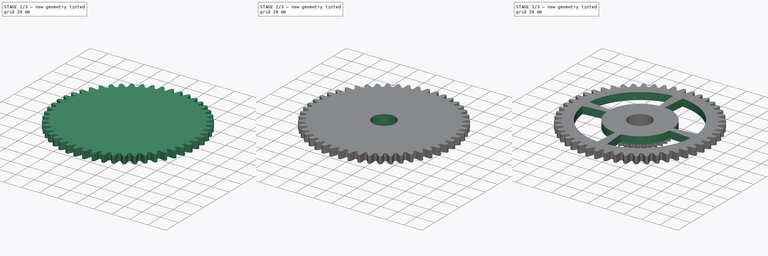
[diagram: build sequence overview — one tinted view per stage of 3, left to right]
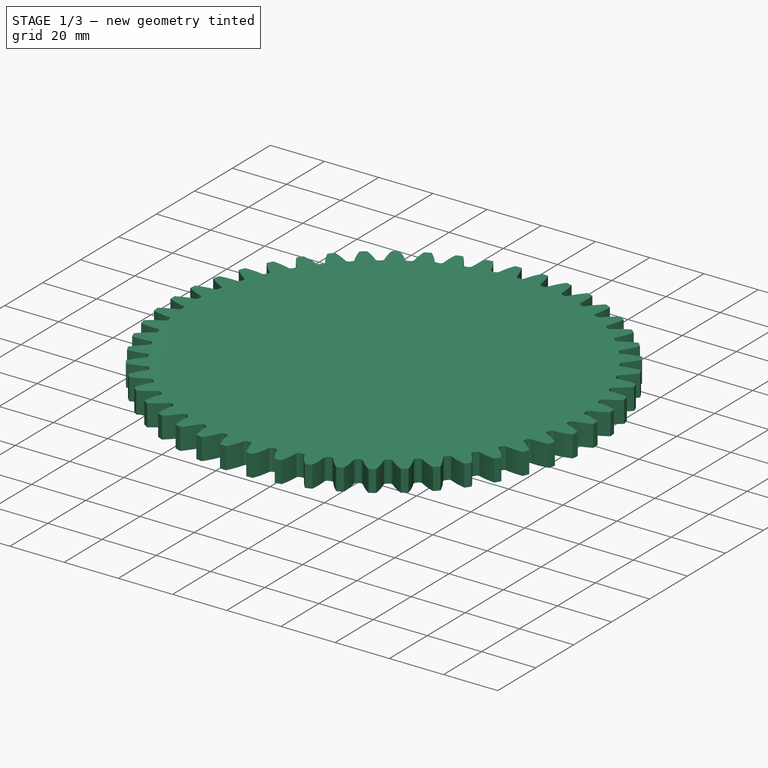
[diagram: stage 1 of 3 — iso view after this stage's code; geometry added in this stage tinted green]
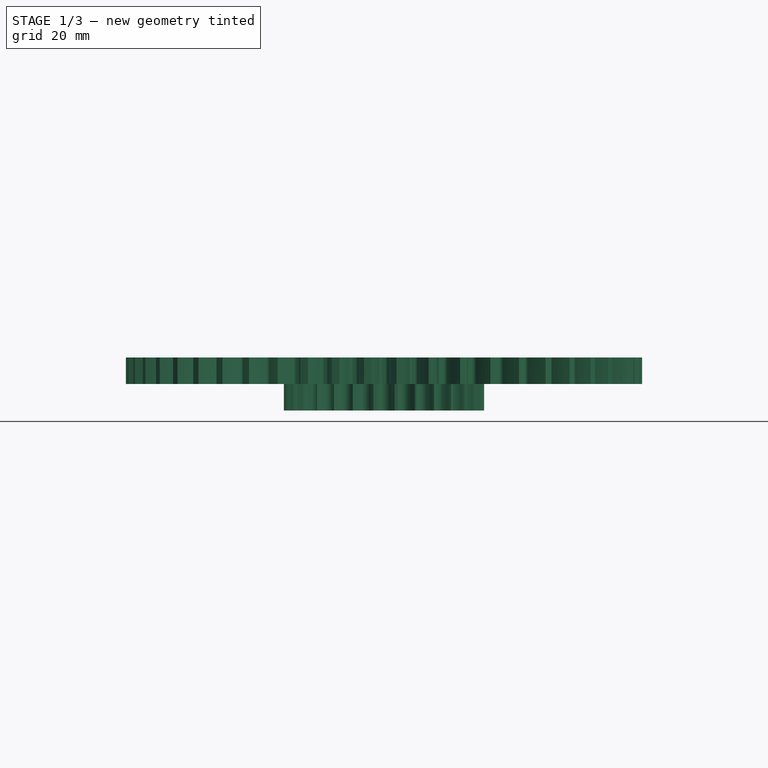
[diagram: stage 1 of 3 — front view after this stage's code; geometry added in this stage tinted green]
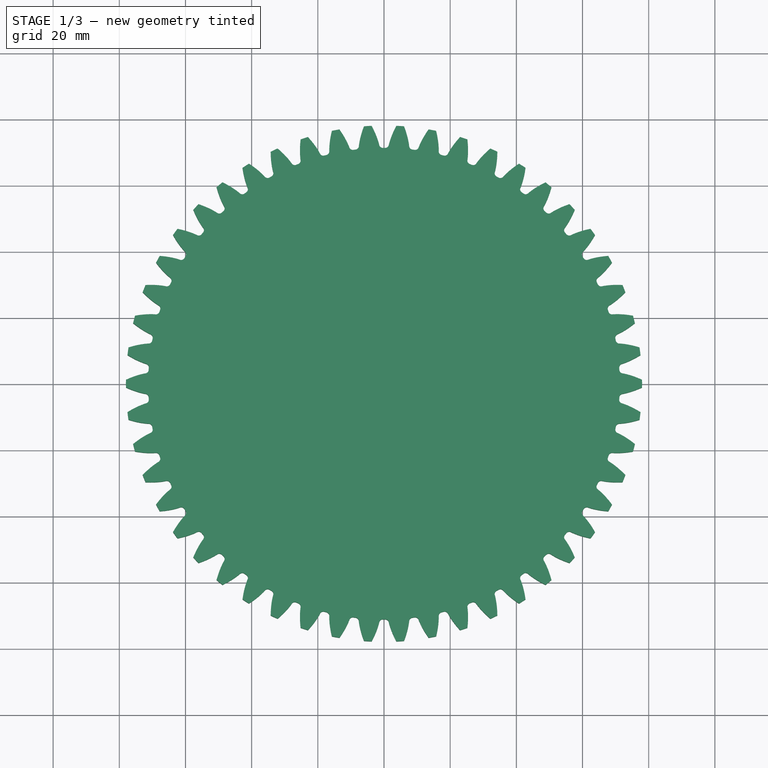
[diagram: stage 1 of 3 — top view after this stage's code; geometry added in this stage tinted green]
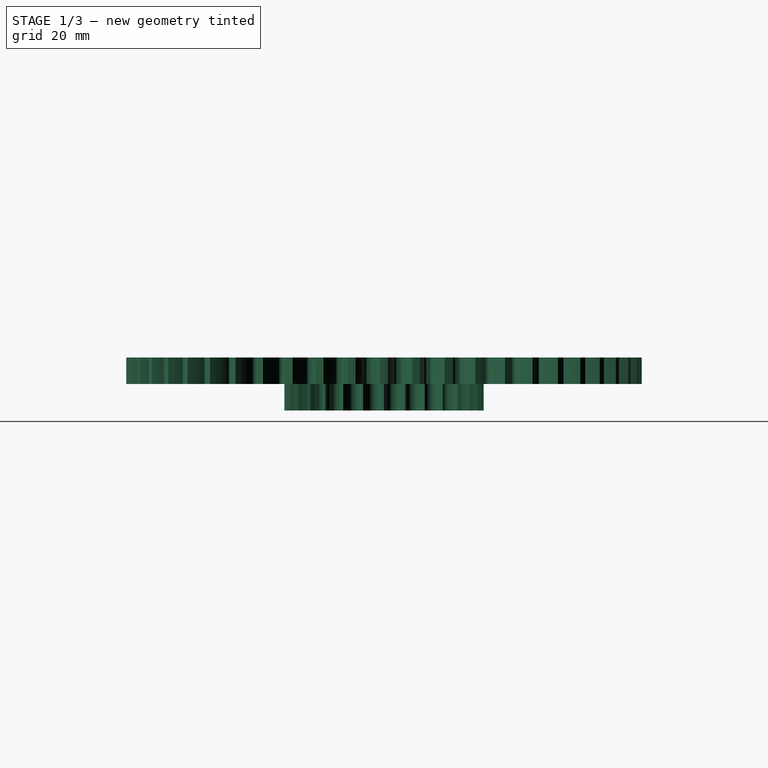
[diagram: stage 1 of 3 — right view after this stage's code; geometry added in this stage tinted green]
FCSTD DOCUMENT  (FreeCAD 0.19R24291 (Git))
Label: blindGear2
License: All rights reserved
LicenseURL: http://en.wikipedia.org/wiki/All_rights_reserved
objects: Sketcher::SketchObject×3, PartDesign::Pocket×3, Part::Part2DObjectPython×2, PartDesign::Pad×2, PartDesign::PolarPattern×1, PartDesign::Body×1
note: 17 computed .brp shape members not serialized (recipe doc carries the construction recipe); baked Part::Feature solids carry a one-line shape summary decoded from their .brp

FEATURE [Part::Part2DObjectPython] InvoluteGear  # Draft 2D object (typed FeaturePython)
  ExternalGear = true
  HighPrecision = false
  MapMode = 3
  Modules = 3
  NumberOfTeeth = 50
  PressureAngle = 20
FEATURE [PartDesign::Pad] Pad  label="Large gear"
  Direction = (1,1,1)
  Length = 8
  Length2 = 100
  Profile = -> InvoluteGear
  Type = 0
FEATURE [Part::Part2DObjectPython] Sprocket  # Draft 2D object (typed FeaturePython)
  ANSISize = 35
  NumberOfTeeth = 30
  Pitch = 6
  RollerDiameter = 4.3
FEATURE [PartDesign::Pad] Pad001  label="small gear"
  BaseFeature = -> Pad
  Direction = (1,1,1)
  Length = 8
  Length2 = 100
  Profile = -> Sprocket
  Reversed = true
  Type = 0
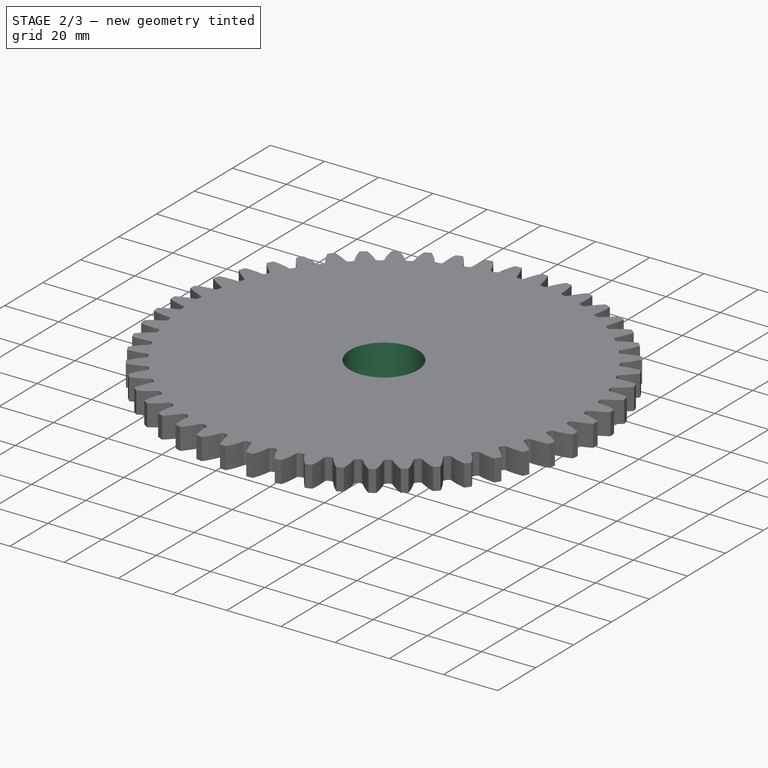
[diagram: stage 2 of 3 — iso view after this stage's code; geometry added in this stage tinted green]
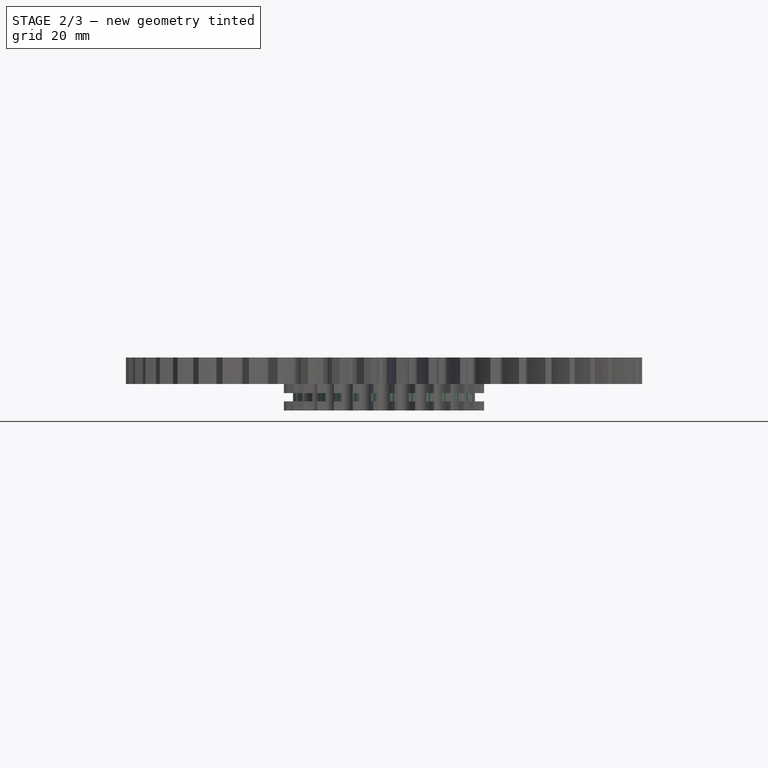
[diagram: stage 2 of 3 — front view after this stage's code; geometry added in this stage tinted green]
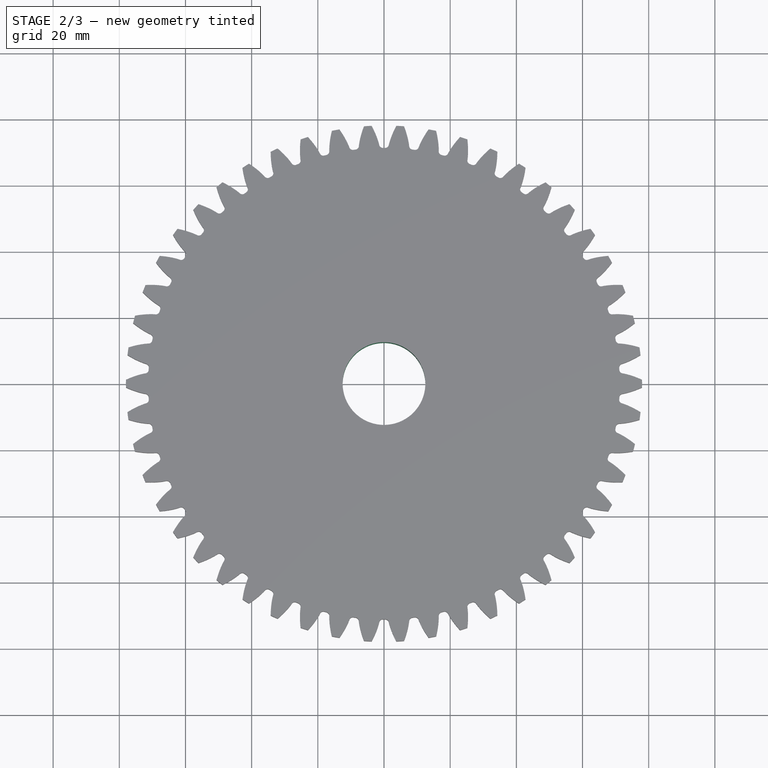
[diagram: stage 2 of 3 — top view after this stage's code; geometry added in this stage tinted green]
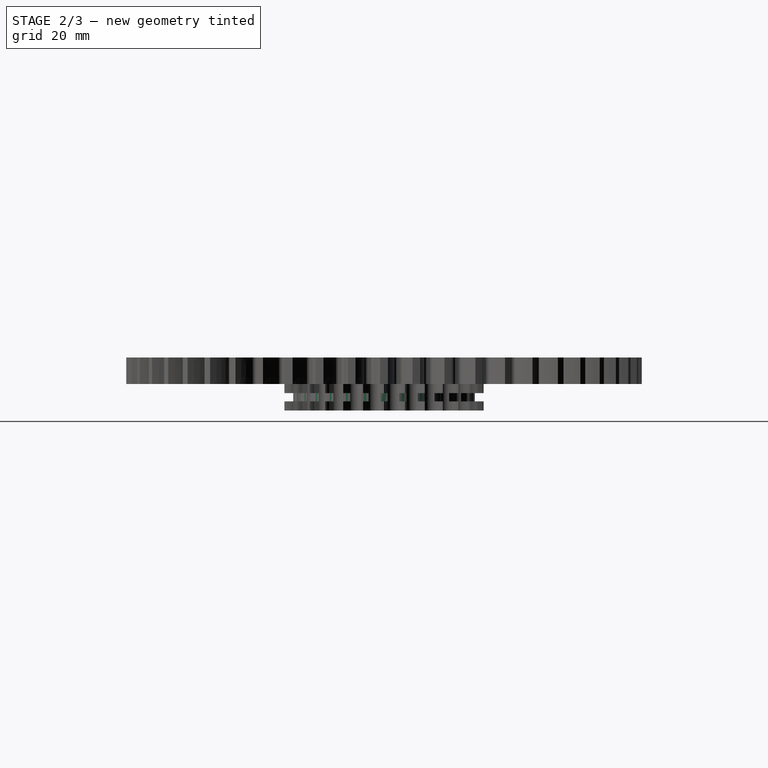
[diagram: stage 2 of 3 — right view after this stage's code; geometry added in this stage tinted green]
FEATURE [Sketcher::SketchObject] Sketch
  FullyConstrained = true
  MapMode = 5
  Placement = pos=(0,0,-4) rot=(1,0,0;3.14159rad)
  sketch-geometry (2):
    g0: Circle CenterX=0 CenterY=0 CenterZ=0 NormalX=0 NormalY=0 NormalZ=1 AngleXU=0 Radius=27.5
    g1: Circle CenterX=0 CenterY=0 CenterZ=0 NormalX=0 NormalY=0 NormalZ=1 AngleXU=0 Radius=32.5
  constraints (6):
    c: PointOnObject(g0,g-1)
    c: PointOnObject(g0,g-2)
    c: Diameter(g0) = 55
    c: PointOnObject(g1,g-1)
    c: PointOnObject(g1,g-2)
    c: Diameter(g1) = 65
FEATURE [PartDesign::Pocket] Pocket  label="thread hole"
  BaseFeature = -> Pad001
  Length = 2.5
  Length2 = 100
  Midplane = true
  Profile = -> Sketch
  Type = 0
FEATURE [Sketcher::SketchObject] Sketch001
  FullyConstrained = true
  MapMode = 5
  Support = -> [XY_Plane]
  sketch-geometry (1):
    g0: Circle CenterX=0 CenterY=0 CenterZ=0 NormalX=0 NormalY=0 NormalZ=1 AngleXU=0 Radius=12.5
  constraints (2):
    c: Coincident(g0,g-1)
    c: Diameter(g0) = 25
FEATURE [PartDesign::Pocket] Pocket001  label="bearing hole"
  BaseFeature = -> Pocket
  Length = 5
  Length2 = 100
  Midplane = true
  Profile = -> Sketch001
  Type = 1
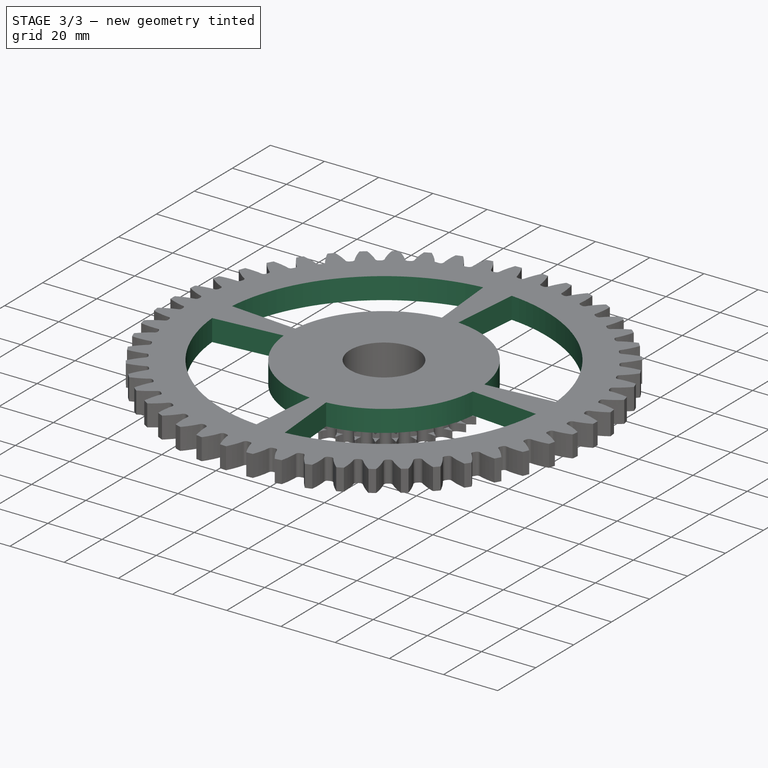
[diagram: stage 3 of 3 — iso view after this stage's code; geometry added in this stage tinted green]
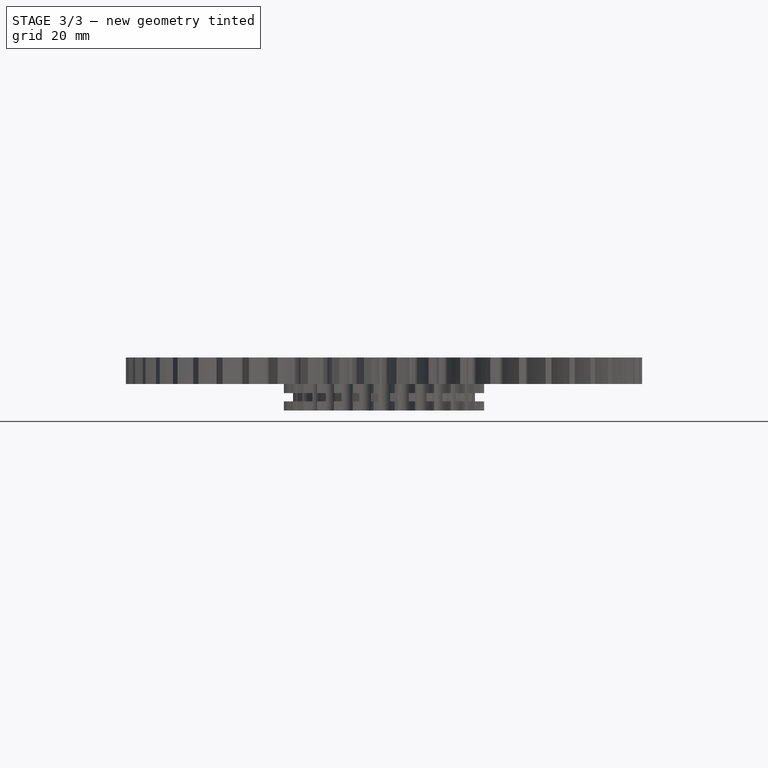
[diagram: stage 3 of 3 — front view after this stage's code; geometry added in this stage tinted green]
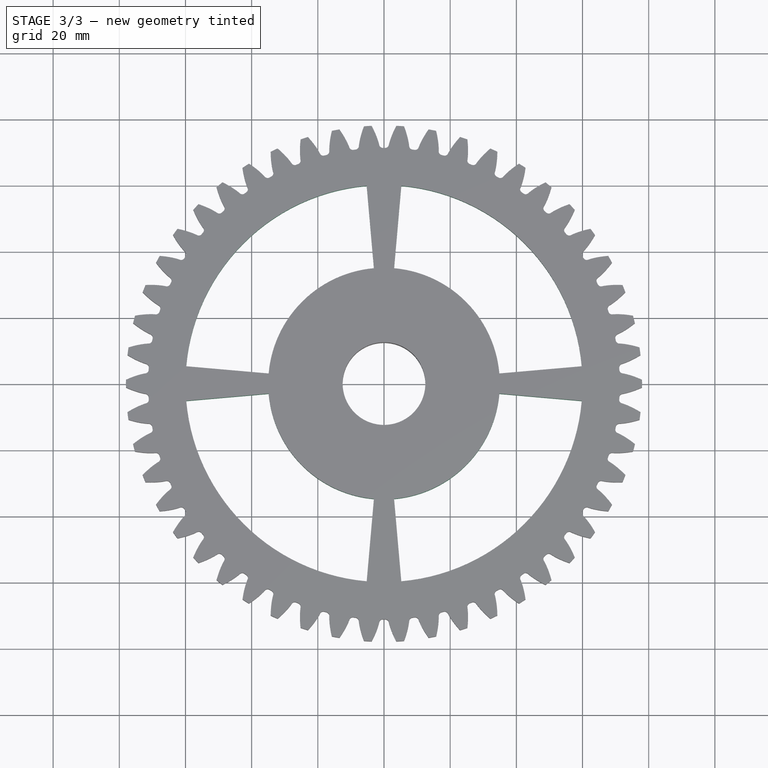
[diagram: stage 3 of 3 — top view after this stage's code; geometry added in this stage tinted green]
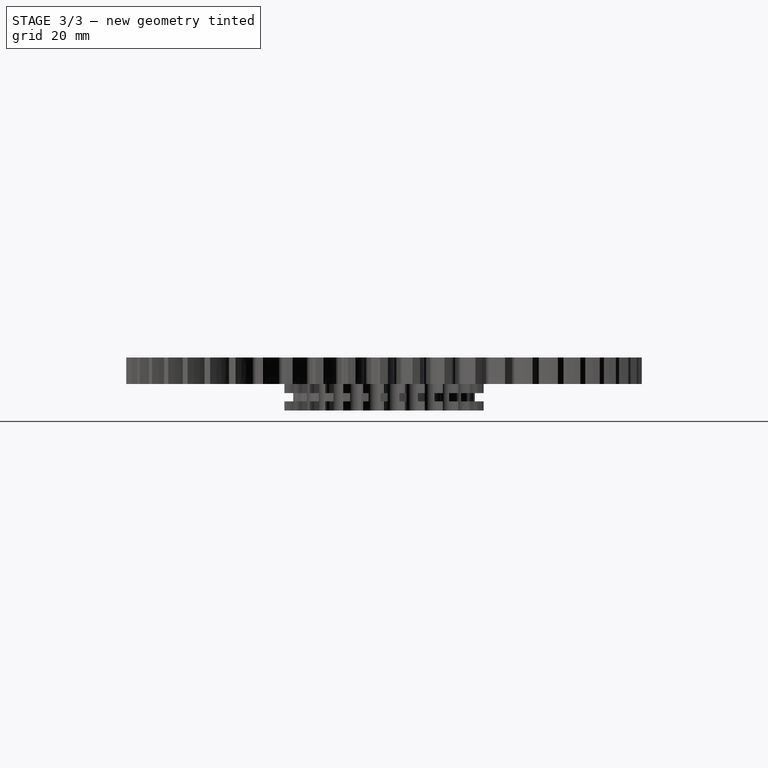
[diagram: stage 3 of 3 — right view after this stage's code; geometry added in this stage tinted green]
FEATURE [Sketcher::SketchObject] Sketch002
  FullyConstrained = true
  MapMode = 5
  Placement = pos=(0,0,0) rot=(1,0,0;3.14159rad)
  Support = -> [Pocket001]
  sketch-geometry (8):
    g0: GeomPoint X=3.05045 Y=34.8668 Z=0
    g1: LineSegment StartX=5.22934 StartY=59.7717 StartZ=0 EndX=3.05045 EndY=34.8668 EndZ=0
    g2: GeomPoint X=34.8668 Y=3.05045 Z=0
    g3: LineSegment StartX=59.7717 StartY=5.22934 StartZ=0 EndX=34.8668 EndY=3.05045 EndZ=0
    g4: ArcOfCircle CenterX=0 CenterY=0 CenterZ=0 NormalX=0 NormalY=0 NormalZ=1 AngleXU=0 Radius=35 StartAngle=0.0872665 EndAngle=1.48353
    g5: ArcOfCircle CenterX=0 CenterY=0 CenterZ=0 NormalX=0 NormalY=0 NormalZ=1 AngleXU=0 Radius=60 StartAngle=0.0872665 EndAngle=1.48353
    g6: LineSegment StartX=0 StartY=0 StartZ=0 EndX=59.7717 EndY=5.22934 EndZ=0
    g7: LineSegment StartX=0 StartY=0 StartZ=0 EndX=5.22934 EndY=59.7717 EndZ=0
  constraints (18):
    c: Coincident(g1,g0)
    c: Coincident(g3,g2)
    c: Coincident(g4,g-1)
    c: Coincident(g4,g1)
    c: Coincident(g5,g4)
    c: Coincident(g5,g1)
    c: Coincident(g5,g3)
    c: Diameter(g4) = 70
    c: Diameter(g5) = 120
    c: Angle(g-1,g3) = 0.0872665
    c: Coincident(g3,g4)
    c: Coincident(g6,g4)
    c: Coincident(g6,g3)
    c: PointOnObject(g3,g6)
    c: Coincident(g7,g4)
    c: Coincident(g7,g1)
    c: PointOnObject(g1,g7)
    c: Angle(g1,g-2) = 0.0872665
FEATURE [PartDesign::Pocket] Pocket002
  BaseFeature = -> Pocket001
  Length = 5
  Length2 = 100
  Profile = -> Sketch002
  Type = 1
FEATURE [PartDesign::PolarPattern] PolarPattern
  Angle = 360
  Axis = -> Sketch002 [N_Axis]
  BaseFeature = -> Pocket002
  Occurrences = 4
  Originals = -> [Pocket002]
FEATURE [PartDesign::Body] Body
  Group = -> [InvoluteGear,Pad,Sprocket,Pad001,Sketch,Pocket,Sketch001,Pocket001,Sketch002,Pocket002,PolarPattern]
  Origin = -> Origin
  Tip = -> PolarPattern
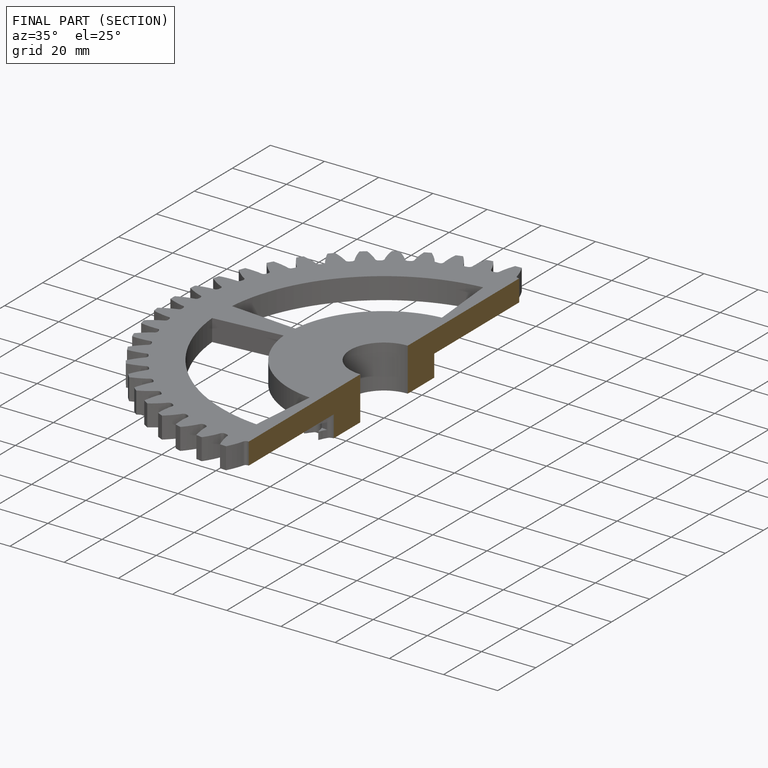
[diagram: finished part — half-section view (interior)]
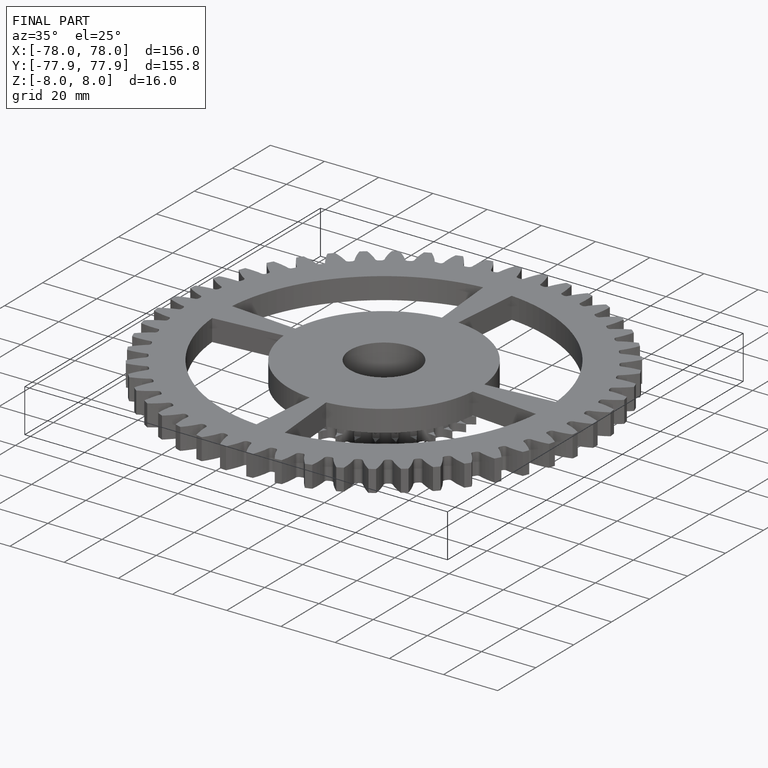
[diagram: finished part — iso view with bounding-box wireframe]
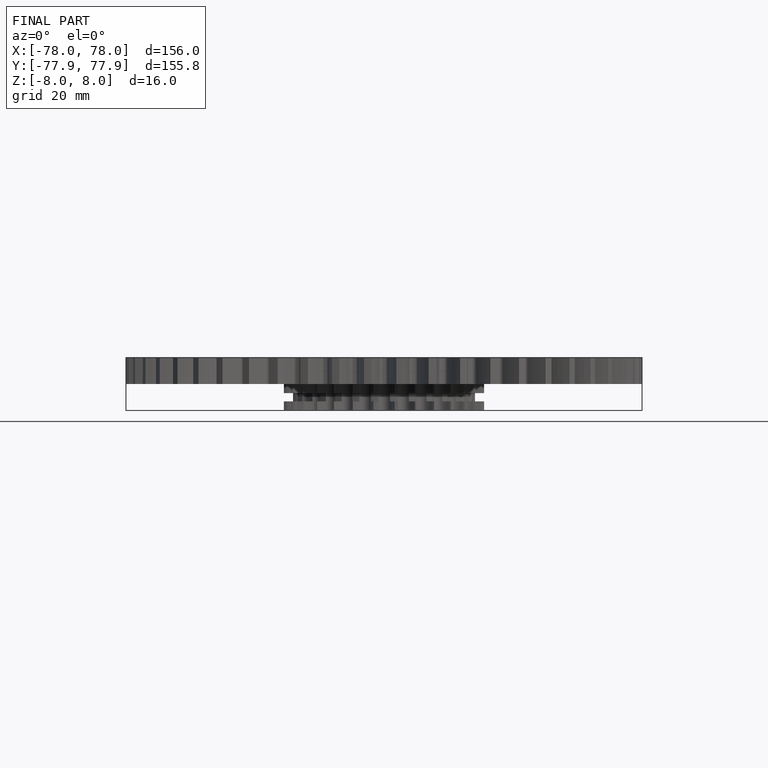
[diagram: finished part — front view with bounding-box wireframe]
